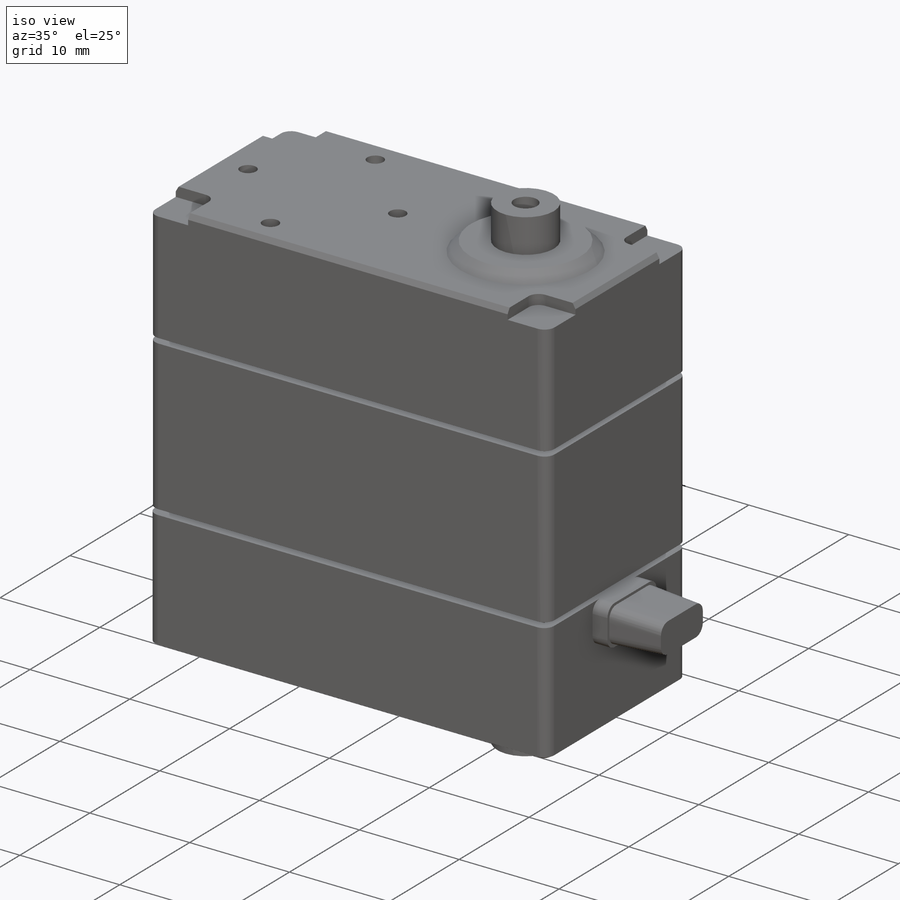
[diagram: iso view]
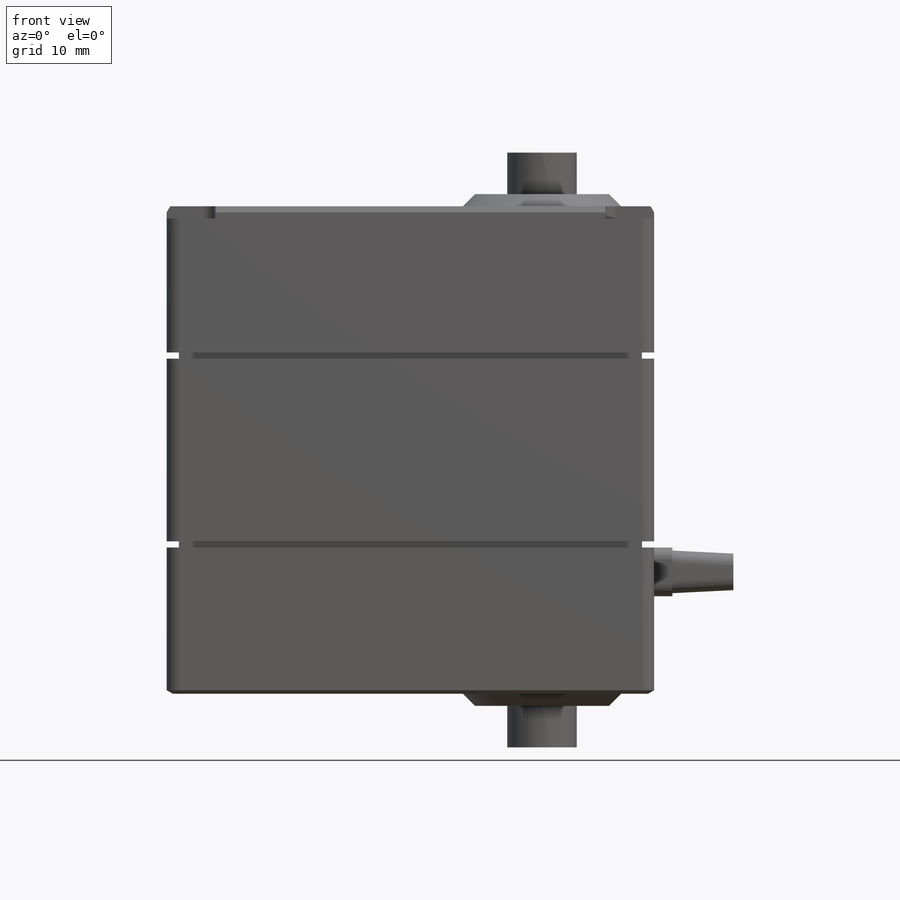
[diagram: front view]
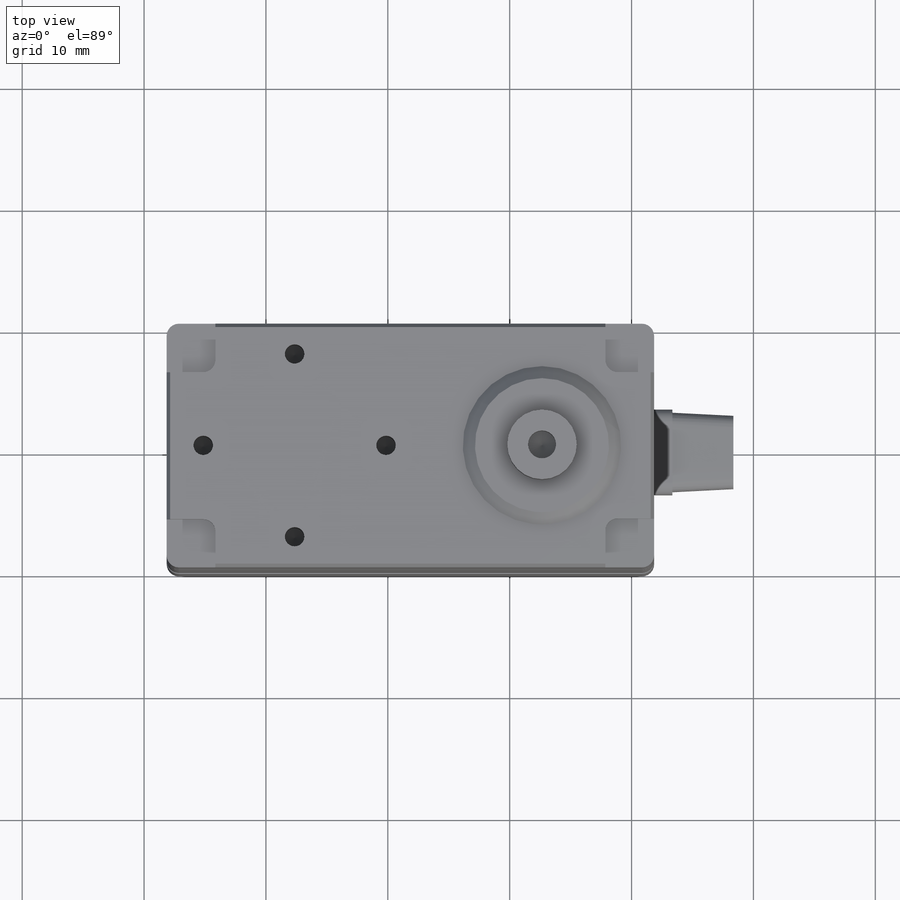
[diagram: top view]
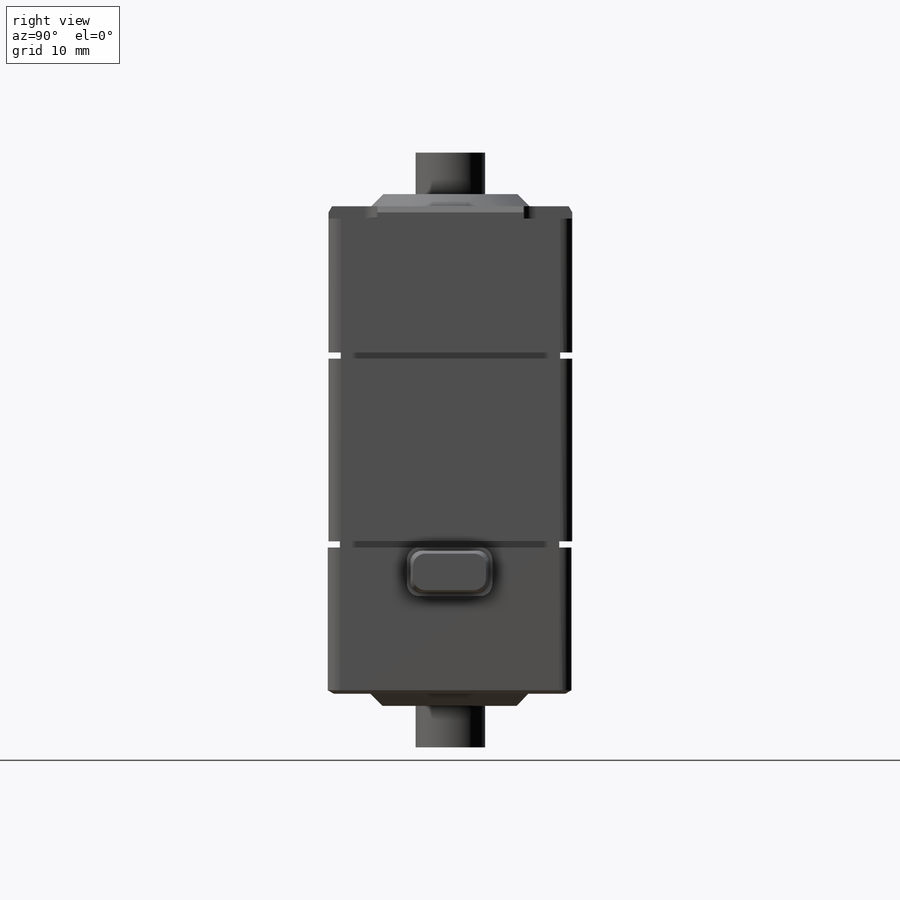
[diagram: right view]
SOLIDWORKS PART (.sldprt)
format: sldprt  version: not decoded by parser v0  size: 642,560 bytes
history: native  units: mm
features: sketch x25, extrude x9, plane x4, cut_extrude x4, chamfer x4, hole x4, material x1, fillet x1 (+10 scaffold rows collapsed)
feature tree (62):
  scaffold x10  (default folders/planes/origin — collapsed)
  material  "PF"
  plane  "Alzado"
  plane  "Planta"
  plane  "Vista lateral"
  sketch  "Croquis1"  dims[D1=20.0mm D2=40.0mm]
  extrude  "Saliente-Extruir1"  Depth=12mm
  sketch  "Croquis2"  dims[D1=1.0mm]
  extrude  "Saliente-Extruir2"  Depth=0.5mm
  sketch  "Croquis3"  dims[D1=20.0mm]
  extrude  "Saliente-Extruir3"  Depth=15mm
  sketch  "Croquis5"  dims[D1=1.0mm]
  extrude  "Saliente-Extruir4"  Depth=0.5mm
  sketch  "Croquis6"  dims[D1=40.0mm]
  extrude  "Saliente-Extruir5"  Depth=12mm
  sketch  "Croquis7"  dims[D1=4.0mm D2=3.0mm]
  cut_extrude  "Cortar-Extruir4"  Depth=1mm
  sketch  "Croquis11"  dims[D1=4.0mm]
  cut_extrude  "Cortar-Extruir7"  Depth=1mm
  sketch  "Croquis12"  dims[D1=4.0mm]
  cut_extrude  "Cortar-Extruir8"  Depth=1mm
  sketch  "Croquis13"  dims[D1=4.0mm]
  cut_extrude  "Cortar-Extruir10"  Depth=1mm
  fillet  "Redondeo1"  Radius=1mm
  sketch  "Croquis15"  dims[D1=9.2mm]
  extrude  "Saliente-Extruir6"  Depth=1mm
  chamfer  "Chaflán13"  Distance=1mm Angle=45deg
  sketch  "Croquis16"  dims[D1=~3.294998mm]
  extrude  "Saliente-Extruir7"  Depth=3.4mm
  sketch  "Croquis19"  dims[D1=9.2mm]
  extrude  "Saliente-Extruir8"  Depth=1mm
  chamfer  "Chaflán16"  Distance=1mm Angle=45deg
  sketch  "Croquis22"  dims[D1=7.5mm]
  hole  "Perforador para roscar para macho de roscar para M21"  Depth=5mm  [1 undecoded]
  sketch  "Croquis25"
  sketch  "Croquis24"  dims[hole-wizard template sketch: 46 standard entries collapsed; hole parameters kept: c15.Diámetro de taladro=1.6mm c15.Profundidad de taladro=5.0mm c15.D3=~14.816244mm c15.Ángulo de perforador=118.0deg]
  chamfer  "Chaflán17"  Distance=0.5mm Angle=30deg
  sketch  "Croquis30"  dims[D1=7.0mm]
  extrude  "Saliente-Extruir10"  Depth=1.5mm
  sketch  "Croquis31"  dims[D1=0.25mm]
  plane  "Plano2"  Offset=5mm
  sketch  "Croquis32"  dims[c1.D1=1.0mm c1.D2=1.0mm c2.D1=0.25mm]
  sketch  "Croquis33"  dims[D1=7.5mm]
  hole  "Perforador para roscar para macho de roscar para M24"  Depth=3mm  [1 undecoded]
  sketch  "Croquis35"
  sketch  "Croquis34"  dims[hole-wizard template sketch: 46 standard entries collapsed; hole parameters kept: c15.Diámetro de taladro=1.6mm c15.Profundidad de taladro=3.0mm c15.D3=~14.816244mm c15.Ángulo de perforador=118.0deg]
  chamfer  "Chaflán18"  Distance=0.5mm Angle=30deg
  hole  "Perforador para roscar Helicoil de M2.21"  Depth=3mm  [1 undecoded]
  sketch  "Croquis38"
  sketch  "Croquis37"  dims[hole-wizard template sketch: 46 standard entries collapsed; hole parameters kept: c15.Diámetro de taladro=2.3mm c15.Profundidad de taladro=3.0mm c15.D3=~14.816244mm c15.Ángulo de perforador=118.0deg]
  hole  "Perforador para roscar Helicoil de M2.22"  Depth=3mm  [1 undecoded]
  sketch  "Croquis40"
  sketch  "Croquis39"  dims[hole-wizard template sketch: 46 standard entries collapsed; hole parameters kept: c15.Diámetro de taladro=2.3mm c15.Profundidad de taladro=3.0mm c15.D3=~14.816244mm c15.Ángulo de perforador=118.0deg]
decode coverage: 43 of 47 modeling features carry decoded parameters
note: ~ marks probable driven/reference dimensions
note: 4 parameter values undecoded
summary: no parameter record found for 4 features
note: suppression state not decoded; provenance and decode notes live in map.json
